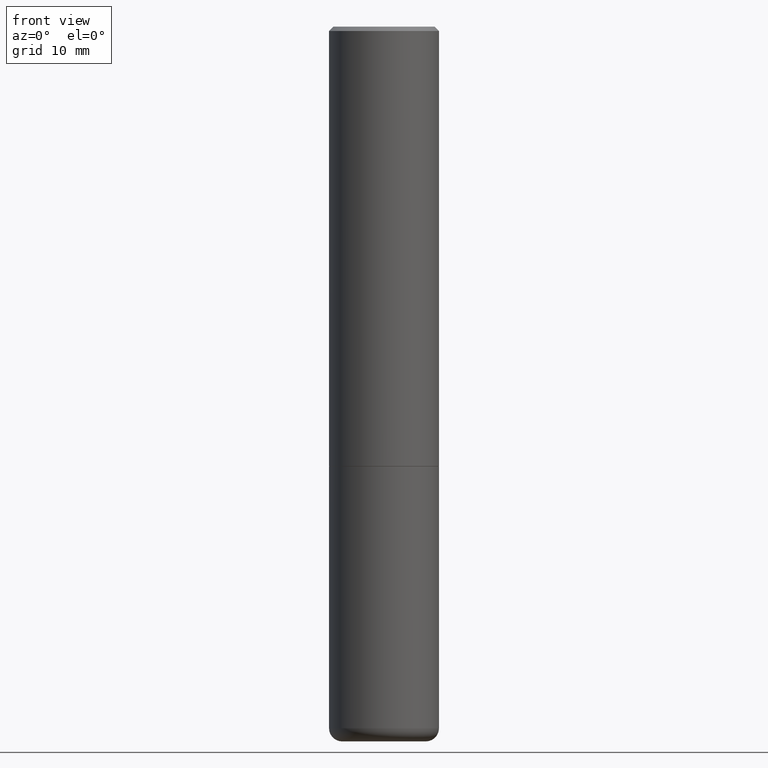
[diagram: clean part render]
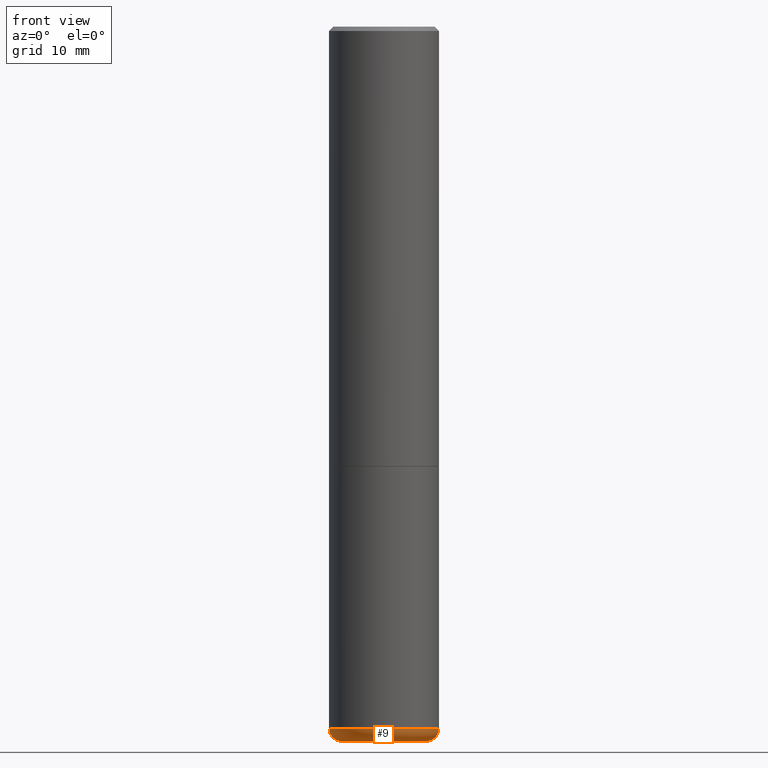
[diagram: same view with one face highlighted and labeled with its STEP entity id]
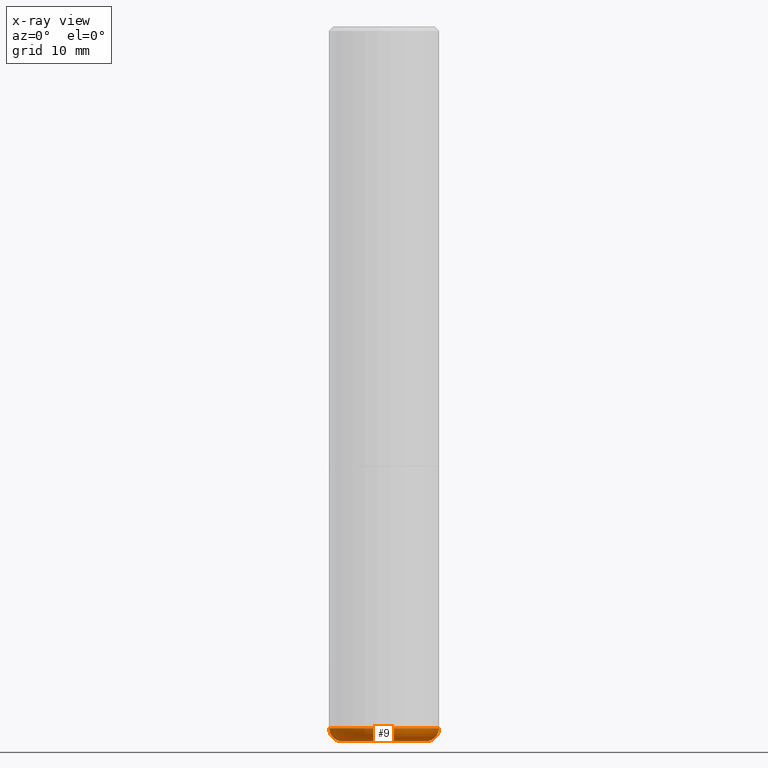
[diagram: x-ray of the same camera — body ghosted, the highlighted face saturated]
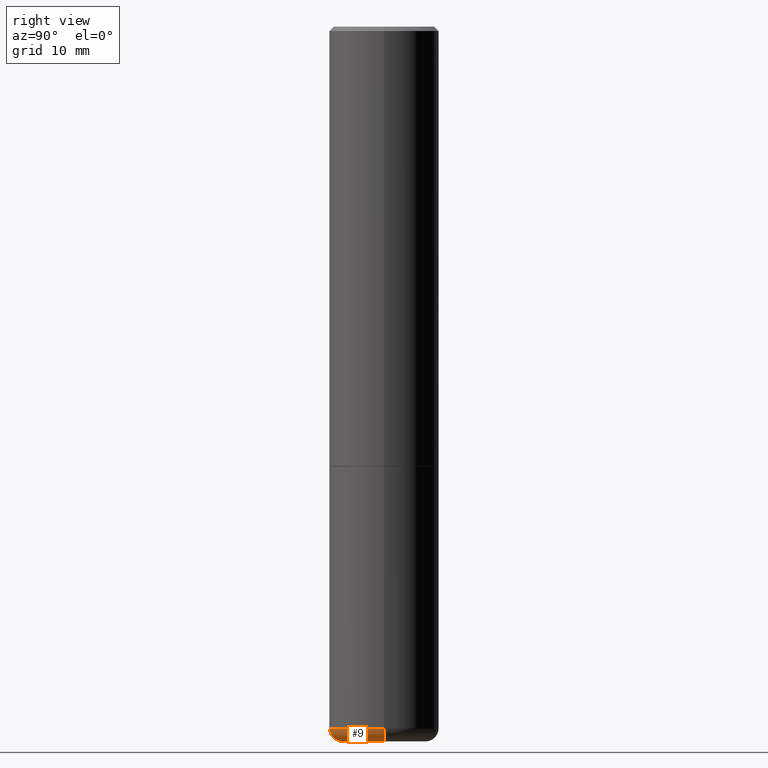
[diagram: same view with one face highlighted and labeled with its STEP entity id]
A machine part, front view. The second image highlights one B-rep face of the part: STEP entity #9.
The next image is the same camera in x-ray: the body ghosted, the highlighted face saturated — about 0% of this face is hidden behind the body in this view.
A second angle (right view) of the same face is appended — the face is thin or edge-on in the first view.
In plain terms, the highlighted toroidal blend (fillet) surface has major radius 4.826 mm and minor (blend) radius 1.524 mm.
Its self-contained STEP definition (entity closure, byte-faithful):
#9 = ADVANCED_FACE ( 'NONE', ( #264 ), #396, .T. ) ;
#12 = DIRECTION ( 'NONE',  ( 1.000000000000000000, -6.982962677686265133E-15, 4.883557194083112340E-29 ) ) ;
#19 = CIRCLE ( 'NONE', #25, 0.1899999999999999745 ) ;
#25 = AXIS2_PLACEMENT_3D ( 'NONE', #271, #298, #44 ) ;
#26 = CARTESIAN_POINT ( 'NONE',  ( 0.1899999999999999745, -1.246458837967002615E-14, -3.189999999999999947 ) ) ;
#44 = DIRECTION ( 'NONE',  ( 1.000000000000000000, -6.982962677686261977E-15, 0.000000000000000000 ) ) ;
#58 = CARTESIAN_POINT ( 'NONE',  ( 0.1899999999999999745, -1.267407726000061289E-14, -3.250000000000000000 ) ) ;
#73 = EDGE_CURVE ( 'NONE', #254, #278, #363, .T. ) ;
#122 = ORIENTED_EDGE ( 'NONE', *, *, #147, .T. ) ;
#142 = DIRECTION ( 'NONE',  ( 7.105427357601001859E-15, 1.000000000000000000, -3.491481338843145583E-15 ) ) ;
#145 = DIRECTION ( 'NONE',  ( -1.000000000000000000, 7.105427357600997914E-15, 0.000000000000000000 ) ) ;
#147 = EDGE_CURVE ( 'NONE', #220, #414, #281, .T. ) ;
#158 = DIRECTION ( 'NONE',  ( 1.000000000000000000, -6.982962677686274599E-15, 0.000000000000000000 ) ) ;
#180 = EDGE_LOOP ( 'NONE', ( #314, #412, #122, #326 ) ) ;
#189 = DIRECTION ( 'NONE',  ( -6.982962677686266711E-15, -1.000000000000000000, 3.491481338843145583E-15 ) ) ;
#191 = AXIS2_PLACEMENT_3D ( 'NONE', #26, #189, #158 ) ;
#192 = DIRECTION ( 'NONE',  ( 1.000000000000000000, -6.982962677686270655E-15, 0.000000000000000000 ) ) ;
#201 = CARTESIAN_POINT ( 'NONE',  ( -0.1899999999999999745, -9.787794272965444556E-15, -3.189999999999999947 ) ) ;
#219 = CARTESIAN_POINT ( 'NONE',  ( -0.2499999999999999722, -9.361468631509382488E-15, -3.189999999999999947 ) ) ;
#220 = VERTEX_POINT ( 'NONE', #58 ) ;
#252 = DIRECTION ( 'NONE',  ( -2.445468806185136597E-29, 3.491481338843145583E-15, 1.000000000000000000 ) ) ;
#254 = VERTEX_POINT ( 'NONE', #410 ) ;
#255 = AXIS2_PLACEMENT_3D ( 'NONE', #389, #268, #12 ) ;
#264 = FACE_OUTER_BOUND ( 'NONE', #180, .T. ) ;
#268 = DIRECTION ( 'NONE',  ( -2.445468806185136597E-29, 3.491481338843145583E-15, 1.000000000000000000 ) ) ;
#271 = CARTESIAN_POINT ( 'NONE',  ( 7.947773620101693940E-29, -1.134731435124022443E-14, -3.250000000000000000 ) ) ;
#278 = VERTEX_POINT ( 'NONE', #219 ) ;
#280 = EDGE_CURVE ( 'NONE', #278, #414, #310, .T. ) ;
#281 = CIRCLE ( 'NONE', #191, 0.05999999999999994227 ) ;
#291 = CARTESIAN_POINT ( 'NONE',  ( 7.801045491730585789E-29, -1.113782547090963453E-14, -3.189999999999999947 ) ) ;
#298 = DIRECTION ( 'NONE',  ( -2.445468806185136597E-29, 3.491481338843145583E-15, 1.000000000000000000 ) ) ;
#301 = AXIS2_PLACEMENT_3D ( 'NONE', #201, #142, #145 ) ;
#310 = CIRCLE ( 'NONE', #337, 0.2500000000000000000 ) ;
#314 = ORIENTED_EDGE ( 'NONE', *, *, #73, .F. ) ;
#326 = ORIENTED_EDGE ( 'NONE', *, *, #280, .F. ) ;
#330 = CARTESIAN_POINT ( 'NONE',  ( 0.2499999999999999722, -1.288356614033120121E-14, -3.189999999999999947 ) ) ;
#337 = AXIS2_PLACEMENT_3D ( 'NONE', #291, #252, #192 ) ;
#349 = EDGE_CURVE ( 'NONE', #254, #220, #19, .T. ) ;
#363 = CIRCLE ( 'NONE', #301, 0.05999999999999994227 ) ;
#389 = CARTESIAN_POINT ( 'NONE',  ( 7.801045491730585789E-29, -1.113782547090963453E-14, -3.189999999999999947 ) ) ;
#396 = TOROIDAL_SURFACE ( 'NONE', #255, 0.1899999999999999745, 0.05999999999999995615 ) ;
#410 = CARTESIAN_POINT ( 'NONE',  ( -0.1899999999999999745, -9.679375892402709259E-15, -3.250000000000000000 ) ) ;
#412 = ORIENTED_EDGE ( 'NONE', *, *, #349, .T. ) ;
#414 = VERTEX_POINT ( 'NONE', #330 ) ;